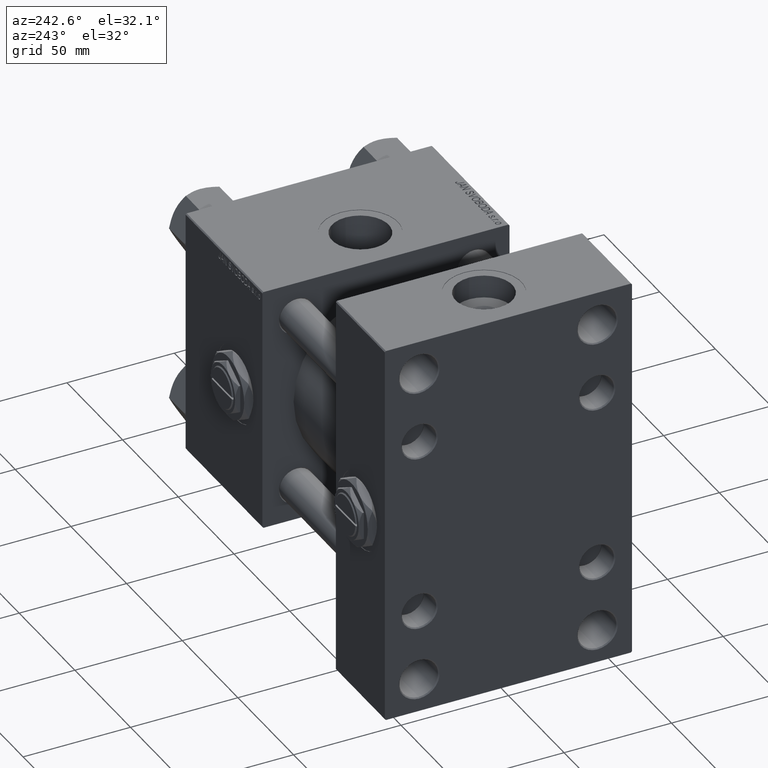
[diagram: clean part render]
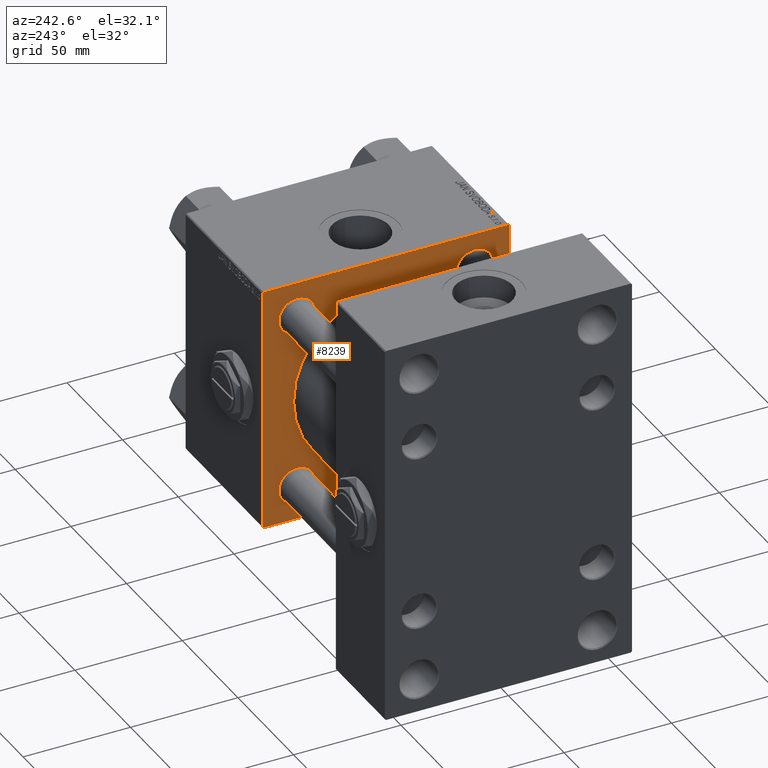
[diagram: same view with one face highlighted and labeled with its STEP entity id]
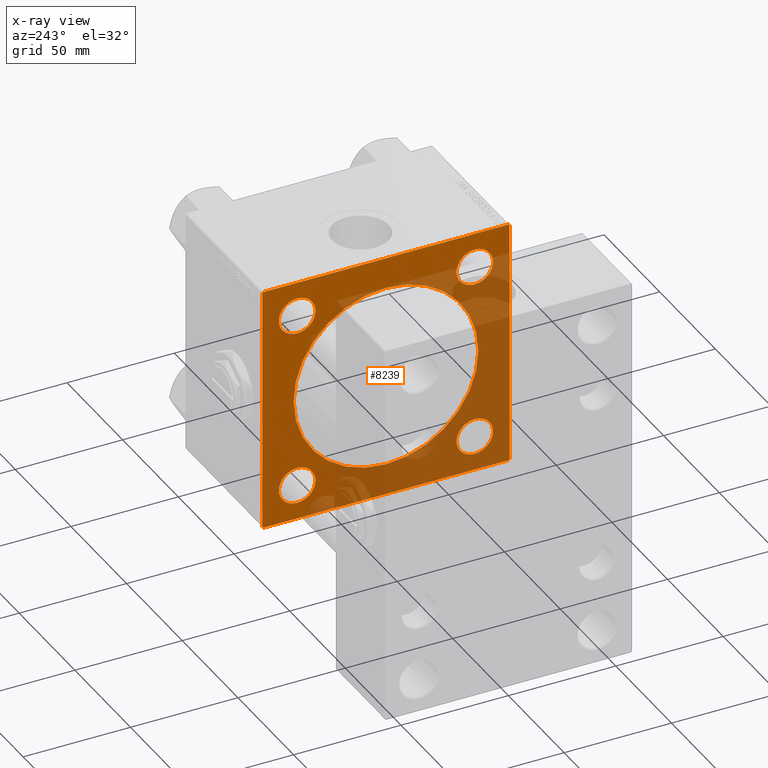
[diagram: x-ray of the same camera — body ghosted, the highlighted face saturated]
A machine part, auxiliary view. The second image highlights one B-rep face of the part: STEP entity #8239.
The next image is the same camera in x-ray: the body ghosted, the highlighted face saturated — about 47% of this face is hidden behind the body in this view.
In plain terms, the highlighted planar face has unit normal (-1, 0, 0).
Its self-contained STEP definition (entity closure, byte-faithful):
#52 = ORIENTED_EDGE ( 'NONE', *, *, #29448, .T. ) ;
#1186 = DIRECTION ( 'NONE',  ( 0.000000000000000000, 0.000000000000000000, 1.000000000000000000 ) ) ;
#1323 = ORIENTED_EDGE ( 'NONE', *, *, #41275, .T. ) ;
#1399 = EDGE_CURVE ( 'NONE', #50215, #51153, #50164, .T. ) ;
#1649 = LINE ( 'NONE', #25548, #30595 ) ;
#2135 = ORIENTED_EDGE ( 'NONE', *, *, #44155, .T. ) ;
#2390 = ORIENTED_EDGE ( 'NONE', *, *, #33307, .T. ) ;
#2398 = ORIENTED_EDGE ( 'NONE', *, *, #23565, .F. ) ;
#2458 = ORIENTED_EDGE ( 'NONE', *, *, #8349, .T. ) ;
#2645 = CARTESIAN_POINT ( 'NONE',  ( 110.0000000000000000, 57.50000000000000000, -57.49999999999996447 ) ) ;
#3308 = VERTEX_POINT ( 'NONE', #10285 ) ;
#3912 = LINE ( 'NONE', #45587, #16938 ) ;
#4032 = EDGE_LOOP ( 'NONE', ( #8222, #7733 ) ) ;
#4215 = CARTESIAN_POINT ( 'NONE',  ( 110.0000000000000000, -41.34999999999998721, 32.85000000000000142 ) ) ;
#4328 = EDGE_LOOP ( 'NONE', ( #2135, #45092 ) ) ;
#4624 = VERTEX_POINT ( 'NONE', #21686 ) ;
#5710 = FACE_BOUND ( 'NONE', #4032, .T. ) ;
#6511 = FACE_OUTER_BOUND ( 'NONE', #49090, .T. ) ;
#6562 = VERTEX_POINT ( 'NONE', #52266 ) ;
#6623 = CIRCLE ( 'NONE', #26159, 43.00000000000000000 ) ;
#7733 = ORIENTED_EDGE ( 'NONE', *, *, #21270, .T. ) ;
#8222 = ORIENTED_EDGE ( 'NONE', *, *, #9188, .T. ) ;
#8239 = ADVANCED_FACE ( 'NONE', ( #26700, #42113, #5710, #21929, #34948, #6511 ), #38141, .T. ) ;
#8334 = DIRECTION ( 'NONE',  ( 1.000000000000000000, -0.000000000000000000, 0.000000000000000000 ) ) ;
#8349 = EDGE_CURVE ( 'NONE', #51705, #16575, #30350, .T. ) ;
#8453 = VERTEX_POINT ( 'NONE', #30106 ) ;
#8797 = EDGE_CURVE ( 'NONE', #31100, #22187, #43809, .T. ) ;
#9111 = CARTESIAN_POINT ( 'NONE',  ( 110.0000000000000000, 2.663896022368408223E-15, -43.00000000000000000 ) ) ;
#9147 = CARTESIAN_POINT ( 'NONE',  ( 110.0000000000000000, 41.34999999999999432, -41.35000000000000142 ) ) ;
#9188 = EDGE_CURVE ( 'NONE', #46183, #8453, #25279, .T. ) ;
#9418 = LINE ( 'NONE', #25093, #40592 ) ;
#9444 = CARTESIAN_POINT ( 'NONE',  ( 110.0000000000000000, -2.602085213965210642E-15, 0.000000000000000000 ) ) ;
#9597 = ORIENTED_EDGE ( 'NONE', *, *, #34110, .T. ) ;
#9686 = AXIS2_PLACEMENT_3D ( 'NONE', #46363, #39188, #10512 ) ;
#10157 = DIRECTION ( 'NONE',  ( 1.000000000000000000, -0.000000000000000000, 0.000000000000000000 ) ) ;
#10285 = CARTESIAN_POINT ( 'NONE',  ( 110.0000000000000000, -2.602085213965210642E-15, 43.00000000000000000 ) ) ;
#10425 = DIRECTION ( 'NONE',  ( 0.000000000000000000, 0.000000000000000000, 1.000000000000000000 ) ) ;
#10512 = DIRECTION ( 'NONE',  ( 0.000000000000000000, 0.000000000000000000, 1.000000000000000000 ) ) ;
#10787 = AXIS2_PLACEMENT_3D ( 'NONE', #22716, #31484, #52158 ) ;
#11094 = EDGE_LOOP ( 'NONE', ( #9597, #19518 ) ) ;
#11626 = DIRECTION ( 'NONE',  ( 0.000000000000000000, 0.000000000000000000, -1.000000000000000000 ) ) ;
#11650 = ORIENTED_EDGE ( 'NONE', *, *, #13557, .F. ) ;
#12148 = DIRECTION ( 'NONE',  ( 0.000000000000000000, 0.000000000000000000, 1.000000000000000000 ) ) ;
#12541 = EDGE_CURVE ( 'NONE', #4624, #6562, #49966, .T. ) ;
#12666 = CARTESIAN_POINT ( 'NONE',  ( 110.0000000000000000, -2.602085213965210642E-15, 0.000000000000000000 ) ) ;
#12897 = DIRECTION ( 'NONE',  ( 0.000000000000000000, 0.000000000000000000, -1.000000000000000000 ) ) ;
#13557 = EDGE_CURVE ( 'NONE', #31100, #46021, #3912, .T. ) ;
#13761 = ORIENTED_EDGE ( 'NONE', *, *, #17352, .T. ) ;
#14144 = CARTESIAN_POINT ( 'NONE',  ( 110.0000000000000000, 41.34999999999999432, 41.35000000000000142 ) ) ;
#14487 = AXIS2_PLACEMENT_3D ( 'NONE', #9147, #21368, #1186 ) ;
#14759 = EDGE_CURVE ( 'NONE', #49522, #17839, #24605, .T. ) ;
#14905 = CIRCLE ( 'NONE', #16597, 8.500000000000007105 ) ;
#14968 = CARTESIAN_POINT ( 'NONE',  ( 110.0000000000000000, -41.34999999999998721, 49.85000000000002274 ) ) ;
#15104 = DIRECTION ( 'NONE',  ( 0.000000000000000000, -1.000000000000000000, -1.206764157201257291E-16 ) ) ;
#15448 = AXIS2_PLACEMENT_3D ( 'NONE', #24505, #16526, #29017 ) ;
#15595 = LINE ( 'NONE', #23310, #51851 ) ;
#15701 = EDGE_LOOP ( 'NONE', ( #36963, #2458 ) ) ;
#16173 = CARTESIAN_POINT ( 'NONE',  ( 110.0000000000000000, 57.25000000000159872, 57.24999999999842970 ) ) ;
#16526 = DIRECTION ( 'NONE',  ( 1.000000000000000000, -0.000000000000000000, 0.000000000000000000 ) ) ;
#16575 = VERTEX_POINT ( 'NONE', #14968 ) ;
#16595 = CARTESIAN_POINT ( 'NONE',  ( 110.0000000000000000, 41.34999999999999432, 41.35000000000000142 ) ) ;
#16597 = AXIS2_PLACEMENT_3D ( 'NONE', #14144, #10157, #10425 ) ;
#16938 = VECTOR ( 'NONE', #40574, 1000.000000000000000 ) ;
#17352 = EDGE_CURVE ( 'NONE', #22187, #30637, #9418, .T. ) ;
#17839 = VERTEX_POINT ( 'NONE', #28692 ) ;
#18477 = CARTESIAN_POINT ( 'NONE',  ( 110.0000000000000000, -57.49999999999999289, -56.99999999999997868 ) ) ;
#19518 = ORIENTED_EDGE ( 'NONE', *, *, #12541, .T. ) ;
#20155 = DIRECTION ( 'NONE',  ( 0.000000000000000000, 0.7071067811865279218, -0.7071067811865671127 ) ) ;
#20739 = AXIS2_PLACEMENT_3D ( 'NONE', #12666, #41328, #41072 ) ;
#21270 = EDGE_CURVE ( 'NONE', #8453, #46183, #39054, .T. ) ;
#21368 = DIRECTION ( 'NONE',  ( 1.000000000000000000, -0.000000000000000000, 0.000000000000000000 ) ) ;
#21386 = DIRECTION ( 'NONE',  ( -0.000000000000000000, 0.7071067811865524577, 0.7071067811865426878 ) ) ;
#21571 = EDGE_CURVE ( 'NONE', #30637, #40482, #1649, .T. ) ;
#21686 = CARTESIAN_POINT ( 'NONE',  ( 110.0000000000000000, -41.34999999999998721, -49.85000000000002274 ) ) ;
#21929 = FACE_BOUND ( 'NONE', #11094, .T. ) ;
#22041 = ORIENTED_EDGE ( 'NONE', *, *, #21571, .T. ) ;
#22187 = VERTEX_POINT ( 'NONE', #41832 ) ;
#22716 = CARTESIAN_POINT ( 'NONE',  ( 110.0000000000000000, 0.000000000000000000, 0.000000000000000000 ) ) ;
#23310 = CARTESIAN_POINT ( 'NONE',  ( 110.0000000000000000, -57.49999999999999289, 57.49999999999999289 ) ) ;
#23565 = EDGE_CURVE ( 'NONE', #25521, #51153, #15595, .T. ) ;
#23942 = CIRCLE ( 'NONE', #15448, 8.500000000000007105 ) ;
#24086 = CARTESIAN_POINT ( 'NONE',  ( 110.0000000000000000, 41.34999999999999432, -41.35000000000000142 ) ) ;
#24505 = CARTESIAN_POINT ( 'NONE',  ( 110.0000000000000000, -41.34999999999998721, 41.35000000000000853 ) ) ;
#24605 = CIRCLE ( 'NONE', #28028, 8.500000000000007105 ) ;
#24805 = CARTESIAN_POINT ( 'NONE',  ( 110.0000000000000000, -41.34999999999998721, 41.35000000000000853 ) ) ;
#25093 = CARTESIAN_POINT ( 'NONE',  ( 110.0000000000000000, 57.50000000000000000, 57.50000000000000711 ) ) ;
#25279 = CIRCLE ( 'NONE', #31224, 8.500000000000007105 ) ;
#25521 = VERTEX_POINT ( 'NONE', #36301 ) ;
#25548 = CARTESIAN_POINT ( 'NONE',  ( 110.0000000000000000, 57.24999999999996447, -57.24999999999996447 ) ) ;
#25608 = VECTOR ( 'NONE', #15104, 1000.000000000000000 ) ;
#25651 = DIRECTION ( 'NONE',  ( 1.000000000000000000, 0.000000000000000000, 0.000000000000000000 ) ) ;
#26159 = AXIS2_PLACEMENT_3D ( 'NONE', #9444, #25651, #46889 ) ;
#26700 = FACE_BOUND ( 'NONE', #15701, .T. ) ;
#27332 = LINE ( 'NONE', #2645, #25608 ) ;
#27948 = AXIS2_PLACEMENT_3D ( 'NONE', #49100, #45121, #32922 ) ;
#28028 = AXIS2_PLACEMENT_3D ( 'NONE', #16595, #32821, #42360 ) ;
#28692 = CARTESIAN_POINT ( 'NONE',  ( 110.0000000000000000, 41.34999999999999432, 49.85000000000001563 ) ) ;
#28938 = CARTESIAN_POINT ( 'NONE',  ( 110.0000000000000000, 41.34999999999999432, 32.84999999999999432 ) ) ;
#29017 = DIRECTION ( 'NONE',  ( 0.000000000000000000, 0.000000000000000000, 1.000000000000000000 ) ) ;
#29031 = EDGE_CURVE ( 'NONE', #16575, #51705, #23942, .T. ) ;
#29048 = DIRECTION ( 'NONE',  ( 0.000000000000000000, 0.000000000000000000, 1.000000000000000000 ) ) ;
#29448 = EDGE_CURVE ( 'NONE', #40482, #50215, #27332, .T. ) ;
#30033 = CARTESIAN_POINT ( 'NONE',  ( 110.0000000000000000, 57.00000000000002842, 57.50000000000000711 ) ) ;
#30106 = CARTESIAN_POINT ( 'NONE',  ( 110.0000000000000000, 41.34999999999999432, -49.85000000000001563 ) ) ;
#30339 = DIRECTION ( 'NONE',  ( -0.000000000000000000, -0.7071067811865474617, -0.7071067811865474617 ) ) ;
#30350 = CIRCLE ( 'NONE', #35420, 8.500000000000007105 ) ;
#30595 = VECTOR ( 'NONE', #30339, 1000.000000000000114 ) ;
#30637 = VERTEX_POINT ( 'NONE', #45761 ) ;
#31100 = VERTEX_POINT ( 'NONE', #30033 ) ;
#31117 = CARTESIAN_POINT ( 'NONE',  ( 110.0000000000000000, 56.99999999999997158, -57.49999999999996447 ) ) ;
#31224 = AXIS2_PLACEMENT_3D ( 'NONE', #24086, #49294, #12148 ) ;
#31484 = DIRECTION ( 'NONE',  ( -1.000000000000000000, 0.000000000000000000, -0.000000000000000000 ) ) ;
#31902 = VECTOR ( 'NONE', #46442, 1000.000000000000000 ) ;
#31953 = CARTESIAN_POINT ( 'NONE',  ( 110.0000000000000000, 41.34999999999999432, -32.84999999999999432 ) ) ;
#32821 = DIRECTION ( 'NONE',  ( 1.000000000000000000, -0.000000000000000000, 0.000000000000000000 ) ) ;
#32922 = DIRECTION ( 'NONE',  ( 0.000000000000000000, 0.000000000000000000, 1.000000000000000000 ) ) ;
#33307 = EDGE_CURVE ( 'NONE', #25521, #46021, #49278, .T. ) ;
#33460 = CIRCLE ( 'NONE', #9686, 8.500000000000007105 ) ;
#33503 = ORIENTED_EDGE ( 'NONE', *, *, #8797, .T. ) ;
#34110 = EDGE_CURVE ( 'NONE', #6562, #4624, #33460, .T. ) ;
#34325 = VERTEX_POINT ( 'NONE', #9111 ) ;
#34948 = FACE_BOUND ( 'NONE', #4328, .T. ) ;
#35358 = EDGE_CURVE ( 'NONE', #34325, #3308, #43657, .T. ) ;
#35420 = AXIS2_PLACEMENT_3D ( 'NONE', #24805, #8334, #29048 ) ;
#36301 = CARTESIAN_POINT ( 'NONE',  ( 110.0000000000000000, -57.49999999999999289, 57.00000000000004974 ) ) ;
#36460 = CARTESIAN_POINT ( 'NONE',  ( 110.0000000000000000, -57.00000000000001421, -57.49999999999997868 ) ) ;
#36963 = ORIENTED_EDGE ( 'NONE', *, *, #29031, .T. ) ;
#38141 = PLANE ( 'NONE',  #10787 ) ;
#39054 = CIRCLE ( 'NONE', #14487, 8.500000000000007105 ) ;
#39188 = DIRECTION ( 'NONE',  ( 1.000000000000000000, -0.000000000000000000, 0.000000000000000000 ) ) ;
#40482 = VERTEX_POINT ( 'NONE', #31117 ) ;
#40574 = DIRECTION ( 'NONE',  ( 0.000000000000000000, -1.000000000000000000, -1.206764157201257291E-16 ) ) ;
#40592 = VECTOR ( 'NONE', #12897, 1000.000000000000000 ) ;
#40662 = ORIENTED_EDGE ( 'NONE', *, *, #1399, .T. ) ;
#41072 = DIRECTION ( 'NONE',  ( 0.000000000000000000, 0.000000000000000000, -1.000000000000000000 ) ) ;
#41275 = EDGE_CURVE ( 'NONE', #17839, #49522, #14905, .T. ) ;
#41328 = DIRECTION ( 'NONE',  ( 1.000000000000000000, 0.000000000000000000, 0.000000000000000000 ) ) ;
#41832 = CARTESIAN_POINT ( 'NONE',  ( 110.0000000000000000, 57.50000000000000000, 57.00000000000000711 ) ) ;
#42113 = FACE_BOUND ( 'NONE', #48068, .T. ) ;
#42360 = DIRECTION ( 'NONE',  ( 0.000000000000000000, 0.000000000000000000, 1.000000000000000000 ) ) ;
#43657 = CIRCLE ( 'NONE', #20739, 43.00000000000000000 ) ;
#43809 = LINE ( 'NONE', #16173, #52341 ) ;
#44155 = EDGE_CURVE ( 'NONE', #3308, #34325, #6623, .T. ) ;
#45092 = ORIENTED_EDGE ( 'NONE', *, *, #35358, .T. ) ;
#45121 = DIRECTION ( 'NONE',  ( 1.000000000000000000, -0.000000000000000000, 0.000000000000000000 ) ) ;
#45587 = CARTESIAN_POINT ( 'NONE',  ( 110.0000000000000000, 57.50000000000000000, 57.50000000000000711 ) ) ;
#45761 = CARTESIAN_POINT ( 'NONE',  ( 110.0000000000000000, 57.50000000000000000, -56.99999999999994316 ) ) ;
#46021 = VERTEX_POINT ( 'NONE', #50039 ) ;
#46183 = VERTEX_POINT ( 'NONE', #31953 ) ;
#46363 = CARTESIAN_POINT ( 'NONE',  ( 110.0000000000000000, -41.34999999999998721, -41.35000000000000853 ) ) ;
#46442 = DIRECTION ( 'NONE',  ( 0.000000000000000000, -0.7071067811865328068, 0.7071067811865622277 ) ) ;
#46889 = DIRECTION ( 'NONE',  ( 0.000000000000000000, 0.000000000000000000, -1.000000000000000000 ) ) ;
#48068 = EDGE_LOOP ( 'NONE', ( #1323, #48562 ) ) ;
#48562 = ORIENTED_EDGE ( 'NONE', *, *, #14759, .T. ) ;
#49090 = EDGE_LOOP ( 'NONE', ( #52, #40662, #2398, #2390, #11650, #33503, #13761, #22041 ) ) ;
#49100 = CARTESIAN_POINT ( 'NONE',  ( 110.0000000000000000, -41.34999999999998721, -41.35000000000000853 ) ) ;
#49278 = LINE ( 'NONE', #49531, #50369 ) ;
#49294 = DIRECTION ( 'NONE',  ( 1.000000000000000000, -0.000000000000000000, 0.000000000000000000 ) ) ;
#49522 = VERTEX_POINT ( 'NONE', #28938 ) ;
#49531 = CARTESIAN_POINT ( 'NONE',  ( 110.0000000000000000, -57.24999999999962341, 57.25000000000041211 ) ) ;
#49966 = CIRCLE ( 'NONE', #27948, 8.500000000000007105 ) ;
#50039 = CARTESIAN_POINT ( 'NONE',  ( 110.0000000000000000, -57.00000000000004263, 57.49999999999999289 ) ) ;
#50164 = LINE ( 'NONE', #50691, #31902 ) ;
#50215 = VERTEX_POINT ( 'NONE', #36460 ) ;
#50369 = VECTOR ( 'NONE', #21386, 1000.000000000000000 ) ;
#50691 = CARTESIAN_POINT ( 'NONE',  ( 110.0000000000000000, -57.25000000000117950, -57.24999999999879918 ) ) ;
#51153 = VERTEX_POINT ( 'NONE', #18477 ) ;
#51705 = VERTEX_POINT ( 'NONE', #4215 ) ;
#51851 = VECTOR ( 'NONE', #11626, 1000.000000000000000 ) ;
#52158 = DIRECTION ( 'NONE',  ( -0.000000000000000000, 0.000000000000000000, 1.000000000000000000 ) ) ;
#52266 = CARTESIAN_POINT ( 'NONE',  ( 110.0000000000000000, -41.34999999999998721, -32.85000000000000142 ) ) ;
#52341 = VECTOR ( 'NONE', #20155, 1000.000000000000000 ) ;